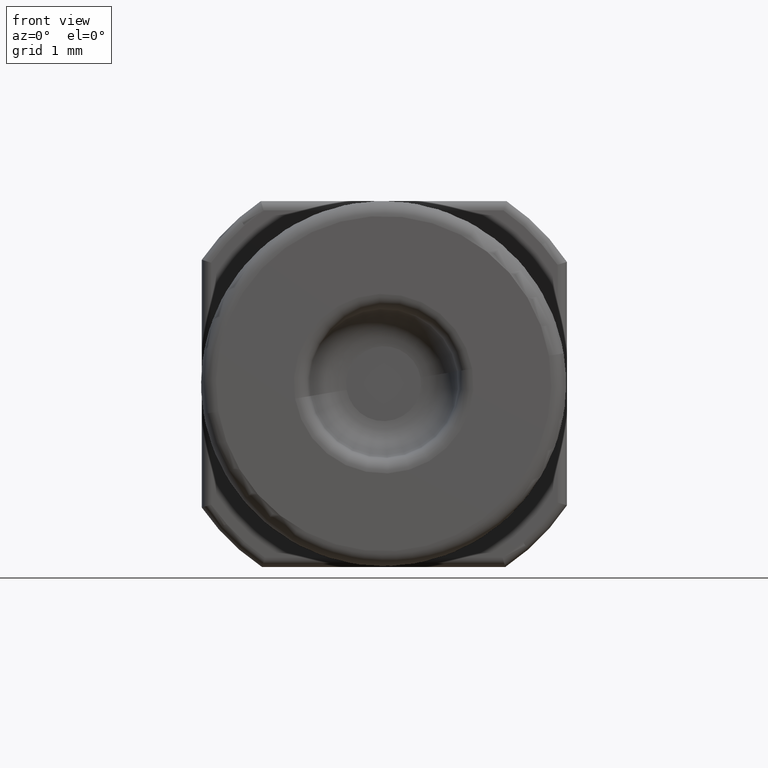
[diagram: clean part render]
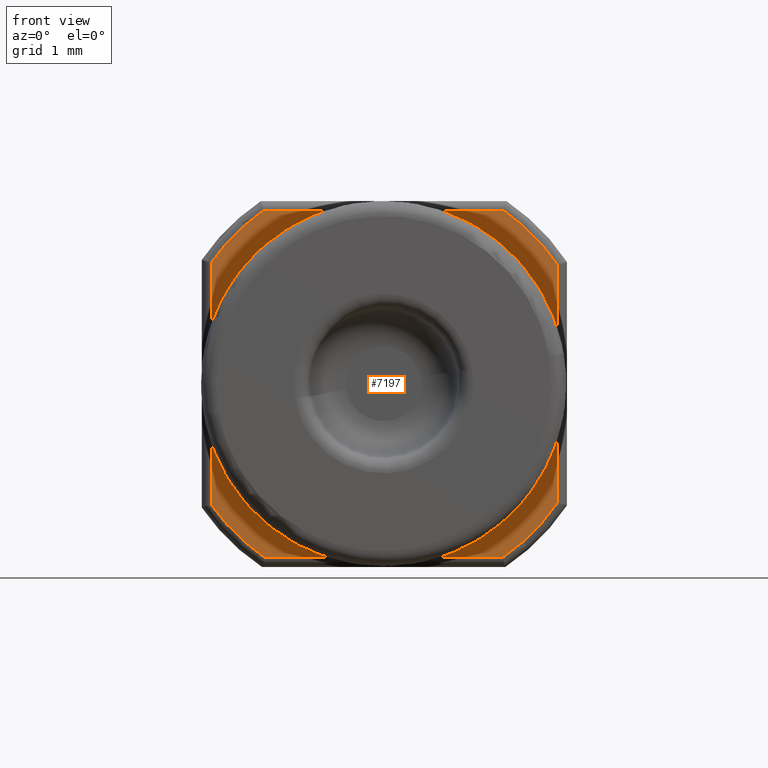
[diagram: same view with one face highlighted and labeled with its STEP entity id]
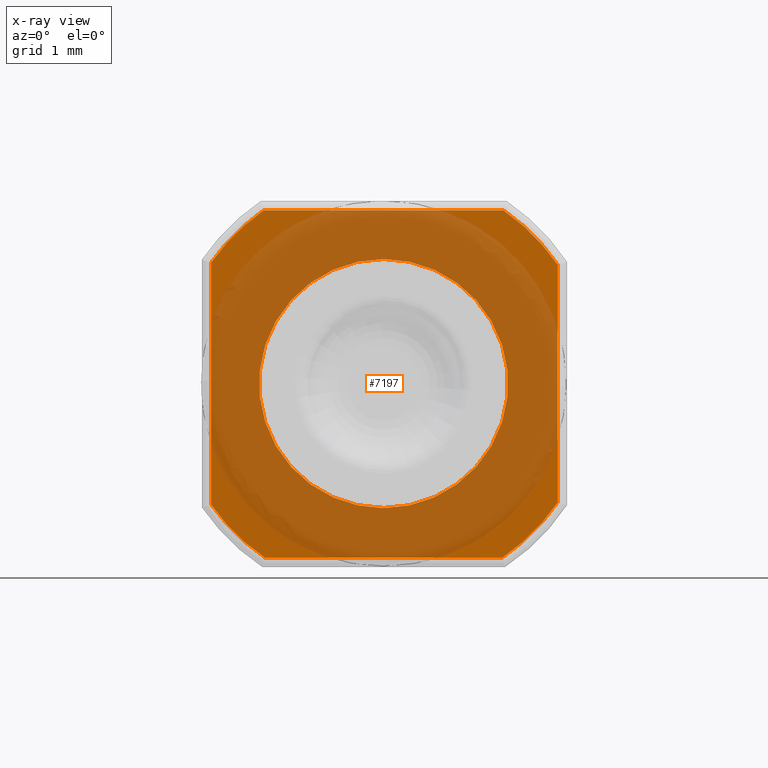
[diagram: x-ray of the same camera — body ghosted, the highlighted face saturated]
A machine part, front view. The second image highlights one B-rep face of the part: STEP entity #7197.
The next image is the same camera in x-ray: the body ghosted, the highlighted face saturated — about 80% of this face is hidden behind the body in this view.
In plain terms, the highlighted planar face has unit normal (0, -1, 0).
Its self-contained STEP definition (entity closure, byte-faithful):
#85 = FACE_OUTER_BOUND ( 'NONE', #4031, .T. ) ;
#114 = EDGE_CURVE ( 'NONE', #6423, #552, #581, .T. ) ;
#329 = AXIS2_PLACEMENT_3D ( 'NONE', #2406, #6212, #1843 ) ;
#346 = CIRCLE ( 'NONE', #3753, 0.1125000000000000167 ) ;
#359 = DIRECTION ( 'NONE',  ( 1.000000000000000000, 0.0000000000000000000, -0.0000000000000000000 ) ) ;
#404 = EDGE_CURVE ( 'NONE', #457, #1565, #817, .T. ) ;
#457 = VERTEX_POINT ( 'NONE', #6192 ) ;
#465 = EDGE_CURVE ( 'NONE', #5995, #6486, #346, .T. ) ;
#492 = CARTESIAN_POINT ( 'NONE',  ( 8.143901214329899284E-18, 0.06049999999999931821, -0.06650000000000001743 ) ) ;
#499 = ORIENTED_EDGE ( 'NONE', *, *, #6221, .T. ) ;
#552 = VERTEX_POINT ( 'NONE', #5040 ) ;
#581 = CIRCLE ( 'NONE', #5154, 0.1124999999999999889 ) ;
#817 = CIRCLE ( 'NONE', #5742, 0.1125000000000000167 ) ;
#1095 = EDGE_CURVE ( 'NONE', #5638, #5995, #4876, .T. ) ;
#1157 = CARTESIAN_POINT ( 'NONE',  ( 0.0000000000000000000, 0.06049999999999931821, 0.06650000000000001743 ) ) ;
#1174 = CARTESIAN_POINT ( 'NONE',  ( 0.0000000000000000000, 0.06049999999999931821, 0.0000000000000000000 ) ) ;
#1214 = DIRECTION ( 'NONE',  ( 0.0000000000000000000, -1.000000000000000000, 0.0000000000000000000 ) ) ;
#1234 = ORIENTED_EDGE ( 'NONE', *, *, #7196, .F. ) ;
#1298 = ORIENTED_EDGE ( 'NONE', *, *, #404, .T. ) ;
#1301 = CARTESIAN_POINT ( 'NONE',  ( -0.09211614024774053555, 0.06049999999999931821, -0.06458224760612316095 ) ) ;
#1565 = VERTEX_POINT ( 'NONE', #5541 ) ;
#1764 = CARTESIAN_POINT ( 'NONE',  ( 0.0000000000000000000, 0.06049999999999931821, 0.0000000000000000000 ) ) ;
#1817 = ORIENTED_EDGE ( 'NONE', *, *, #5189, .F. ) ;
#1843 = DIRECTION ( 'NONE',  ( 0.0000000000000000000, -0.0000000000000000000, -1.000000000000000000 ) ) ;
#2004 = DIRECTION ( 'NONE',  ( 0.0000000000000000000, 0.0000000000000000000, -1.000000000000000000 ) ) ;
#2079 = VERTEX_POINT ( 'NONE', #1157 ) ;
#2211 = CARTESIAN_POINT ( 'NONE',  ( -0.06403124237432847310, 0.06049999999999931821, 0.09249999999999999889 ) ) ;
#2339 = DIRECTION ( 'NONE',  ( 0.0000000000000000000, 0.0000000000000000000, -1.000000000000000000 ) ) ;
#2406 = CARTESIAN_POINT ( 'NONE',  ( 0.0000000000000000000, 0.06049999999999931821, 0.0000000000000000000 ) ) ;
#2473 = DIRECTION ( 'NONE',  ( 0.0000000000000000000, 0.0000000000000000000, 1.000000000000000000 ) ) ;
#2622 = CARTESIAN_POINT ( 'NONE',  ( 0.06347313287937345061, 0.06049999999999931821, -0.09288385975225946223 ) ) ;
#2871 = LINE ( 'NONE', #5669, #4372 ) ;
#2888 = DIRECTION ( 'NONE',  ( 0.0000000000000000000, -1.000000000000000000, 0.0000000000000000000 ) ) ;
#3052 = ORIENTED_EDGE ( 'NONE', *, *, #465, .T. ) ;
#3107 = ORIENTED_EDGE ( 'NONE', *, *, #4171, .T. ) ;
#3413 = DIRECTION ( 'NONE',  ( 0.0000000000000000000, 0.0000000000000000000, -1.000000000000000000 ) ) ;
#3485 = DIRECTION ( 'NONE',  ( 0.0000000000000000000, 0.0000000000000000000, -1.000000000000000000 ) ) ;
#3661 = VERTEX_POINT ( 'NONE', #492 ) ;
#3753 = AXIS2_PLACEMENT_3D ( 'NONE', #1174, #2888, #3413 ) ;
#4014 = DIRECTION ( 'NONE',  ( 0.0000000000000000000, -1.000000000000000000, 0.0000000000000000000 ) ) ;
#4031 = EDGE_LOOP ( 'NONE', ( #3107, #5824, #6979, #3052, #499, #1298, #6925, #4326 ) ) ;
#4111 = EDGE_CURVE ( 'NONE', #5817, #5638, #5069, .T. ) ;
#4115 = CARTESIAN_POINT ( 'NONE',  ( -0.06557438524301999194, 0.06049999999999931821, 0.09249999999999999889 ) ) ;
#4171 = EDGE_CURVE ( 'NONE', #552, #5817, #2871, .T. ) ;
#4197 = LINE ( 'NONE', #6387, #7118 ) ;
#4297 = EDGE_LOOP ( 'NONE', ( #1234, #1817 ) ) ;
#4326 = ORIENTED_EDGE ( 'NONE', *, *, #114, .T. ) ;
#4349 = DIRECTION ( 'NONE',  ( 0.0000000000000000000, 0.0000000000000000000, -1.000000000000000000 ) ) ;
#4372 = VECTOR ( 'NONE', #2339, 39.37007874015748143 ) ;
#4563 = CIRCLE ( 'NONE', #4917, 0.06650000000000001743 ) ;
#4607 = CIRCLE ( 'NONE', #6473, 0.06650000000000001743 ) ;
#4709 = DIRECTION ( 'NONE',  ( 0.0000000000000000000, -1.000000000000000000, 0.0000000000000000000 ) ) ;
#4722 = DIRECTION ( 'NONE',  ( -1.000000000000000000, 0.0000000000000000000, 0.0000000000000000000 ) ) ;
#4774 = EDGE_CURVE ( 'NONE', #1565, #6423, #5818, .T. ) ;
#4876 = LINE ( 'NONE', #6560, #5366 ) ;
#4917 = AXIS2_PLACEMENT_3D ( 'NONE', #5187, #5112, #6944 ) ;
#4974 = CARTESIAN_POINT ( 'NONE',  ( 0.0000000000000000000, 0.06049999999999931821, 0.0000000000000000000 ) ) ;
#5040 = CARTESIAN_POINT ( 'NONE',  ( -0.09211614024774053555, 0.06049999999999931821, 0.06458224760612313320 ) ) ;
#5069 = CIRCLE ( 'NONE', #5195, 0.1125000000000000167 ) ;
#5112 = DIRECTION ( 'NONE',  ( 0.0000000000000000000, -1.000000000000000000, 0.0000000000000000000 ) ) ;
#5154 = AXIS2_PLACEMENT_3D ( 'NONE', #1764, #1214, #3485 ) ;
#5187 = CARTESIAN_POINT ( 'NONE',  ( 0.0000000000000000000, 0.06049999999999931821, 0.0000000000000000000 ) ) ;
#5189 = EDGE_CURVE ( 'NONE', #3661, #2079, #4607, .T. ) ;
#5195 = AXIS2_PLACEMENT_3D ( 'NONE', #4974, #7205, #4349 ) ;
#5260 = PLANE ( 'NONE',  #329 ) ;
#5366 = VECTOR ( 'NONE', #359, 39.37007874015748143 ) ;
#5501 = CARTESIAN_POINT ( 'NONE',  ( -0.06347313287937342285, 0.06049999999999931821, -0.09288385975225946223 ) ) ;
#5541 = CARTESIAN_POINT ( 'NONE',  ( 0.06403124237432851473, 0.06049999999999931821, 0.09249999999999999889 ) ) ;
#5638 = VERTEX_POINT ( 'NONE', #5501 ) ;
#5669 = CARTESIAN_POINT ( 'NONE',  ( -0.09211614024774053555, 0.06049999999999931821, -0.06614155504205497527 ) ) ;
#5742 = AXIS2_PLACEMENT_3D ( 'NONE', #7218, #4014, #6155 ) ;
#5817 = VERTEX_POINT ( 'NONE', #1301 ) ;
#5818 = LINE ( 'NONE', #4115, #6253 ) ;
#5824 = ORIENTED_EDGE ( 'NONE', *, *, #4111, .T. ) ;
#5995 = VERTEX_POINT ( 'NONE', #2622 ) ;
#6155 = DIRECTION ( 'NONE',  ( 0.0000000000000000000, 0.0000000000000000000, -1.000000000000000000 ) ) ;
#6192 = CARTESIAN_POINT ( 'NONE',  ( 0.09288385975225946223, 0.06049999999999931821, 0.06347313287937345061 ) ) ;
#6212 = DIRECTION ( 'NONE',  ( 0.0000000000000000000, -1.000000000000000000, 0.0000000000000000000 ) ) ;
#6221 = EDGE_CURVE ( 'NONE', #6486, #457, #4197, .T. ) ;
#6253 = VECTOR ( 'NONE', #4722, 39.37007874015748143 ) ;
#6387 = CARTESIAN_POINT ( 'NONE',  ( 0.09288385975225946223, 0.06049999999999931821, 0.06500000000000000222 ) ) ;
#6423 = VERTEX_POINT ( 'NONE', #2211 ) ;
#6473 = AXIS2_PLACEMENT_3D ( 'NONE', #7031, #4709, #2004 ) ;
#6486 = VERTEX_POINT ( 'NONE', #6821 ) ;
#6560 = CARTESIAN_POINT ( 'NONE',  ( 0.06500000000000000222, 0.06049999999999931821, -0.09288385975225946223 ) ) ;
#6821 = CARTESIAN_POINT ( 'NONE',  ( 0.09288385975225946223, 0.06049999999999931821, -0.06347313287937345061 ) ) ;
#6868 = FACE_BOUND ( 'NONE', #4297, .T. ) ;
#6925 = ORIENTED_EDGE ( 'NONE', *, *, #4774, .T. ) ;
#6944 = DIRECTION ( 'NONE',  ( 0.0000000000000000000, 0.0000000000000000000, -1.000000000000000000 ) ) ;
#6979 = ORIENTED_EDGE ( 'NONE', *, *, #1095, .T. ) ;
#7031 = CARTESIAN_POINT ( 'NONE',  ( 0.0000000000000000000, 0.06049999999999931821, 0.0000000000000000000 ) ) ;
#7118 = VECTOR ( 'NONE', #2473, 39.37007874015748143 ) ;
#7196 = EDGE_CURVE ( 'NONE', #2079, #3661, #4563, .T. ) ;
#7197 = ADVANCED_FACE ( 'NONE', ( #85, #6868 ), #5260, .T. ) ;
#7205 = DIRECTION ( 'NONE',  ( 0.0000000000000000000, -1.000000000000000000, 0.0000000000000000000 ) ) ;
#7218 = CARTESIAN_POINT ( 'NONE',  ( 0.0000000000000000000, 0.06049999999999931821, 0.0000000000000000000 ) ) ;